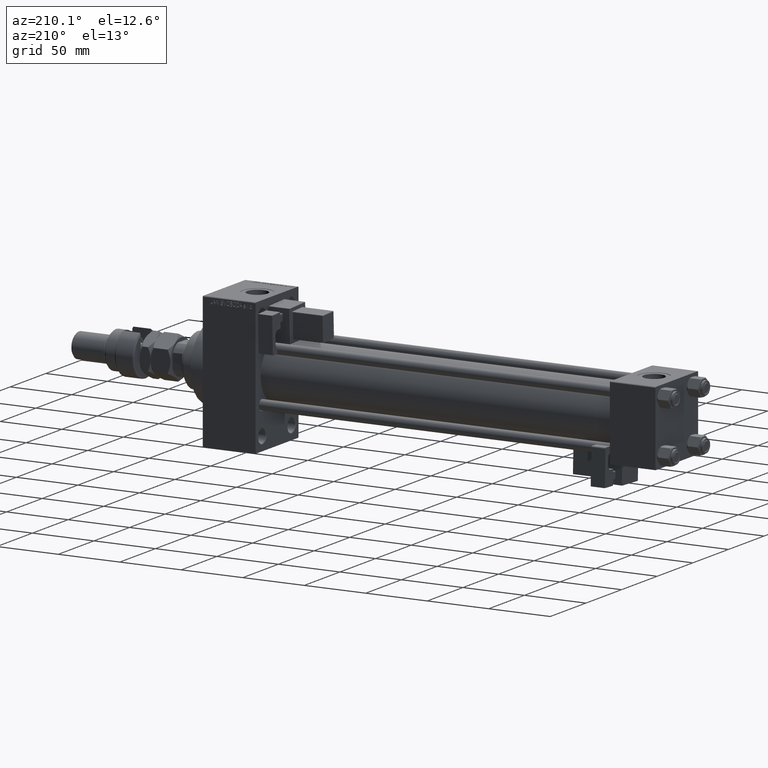
[diagram: clean part render]
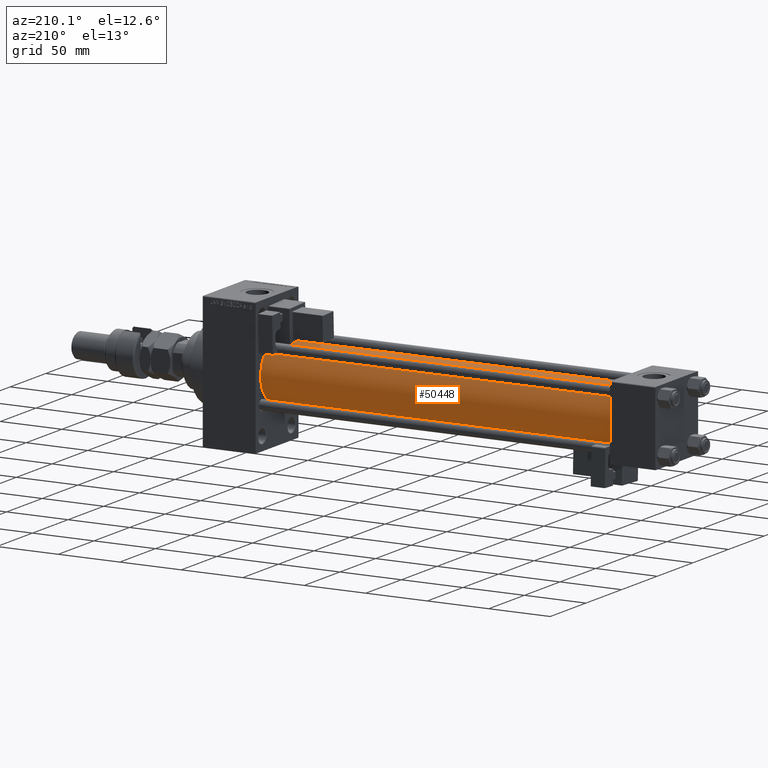
[diagram: same view with one face highlighted and labeled with its STEP entity id]
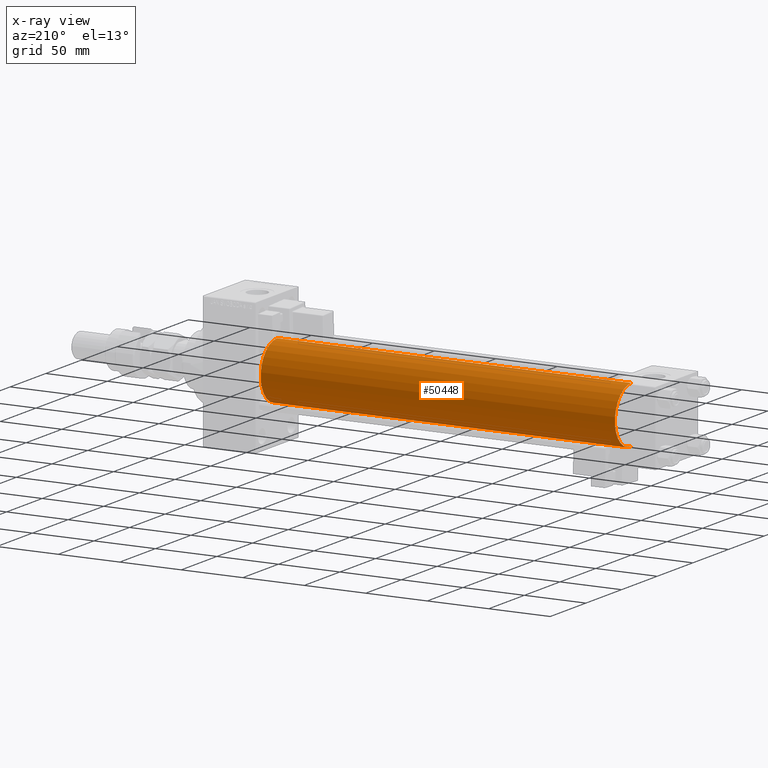
[diagram: x-ray of the same camera — body ghosted, the highlighted face saturated]
A machine part, auxiliary view. The second image highlights one B-rep face of the part: STEP entity #50448.
The next image is the same camera in x-ray: the body ghosted, the highlighted face saturated — about 0% of this face is hidden behind the body in this view.
In plain terms, the highlighted cylindrical surface (edge-blend (fillet) strip) has radius 23 mm, axis along (-1, -0, -0).
Its self-contained STEP definition (entity closure, byte-faithful):
#659 = CARTESIAN_POINT ( 'NONE',  ( 36.99999999999997868, 2.146024240737016609E-16, -23.00000000000000000 ) ) ;
#3034 = ORIENTED_EDGE ( 'NONE', *, *, #37082, .F. ) ;
#4034 = CIRCLE ( 'NONE', #10814, 23.00000000000000000 ) ;
#4210 = CIRCLE ( 'NONE', #43269, 23.00000000000000000 ) ;
#4756 = FACE_OUTER_BOUND ( 'NONE', #23323, .T. ) ;
#5018 = VERTEX_POINT ( 'NONE', #14227 ) ;
#5290 = VECTOR ( 'NONE', #17270, 1000.000000000000000 ) ;
#5890 = DIRECTION ( 'NONE',  ( 0.000000000000000000, 0.000000000000000000, 1.000000000000000000 ) ) ;
#7802 = EDGE_CURVE ( 'NONE', #5018, #25279, #47234, .T. ) ;
#8727 = DIRECTION ( 'NONE',  ( 0.000000000000000000, 0.000000000000000000, 1.000000000000000000 ) ) ;
#10535 = DIRECTION ( 'NONE',  ( -1.000000000000000000, -0.000000000000000000, -0.000000000000000000 ) ) ;
#10814 = AXIS2_PLACEMENT_3D ( 'NONE', #28678, #15407, #31893 ) ;
#11143 = AXIS2_PLACEMENT_3D ( 'NONE', #28687, #44904, #8727 ) ;
#12178 = VECTOR ( 'NONE', #10535, 1000.000000000000000 ) ;
#13557 = ORIENTED_EDGE ( 'NONE', *, *, #22649, .F. ) ;
#14227 = CARTESIAN_POINT ( 'NONE',  ( 324.9999999999999432, 2.146024240737016609E-16, -23.00000000000000000 ) ) ;
#15407 = DIRECTION ( 'NONE',  ( 1.000000000000000000, 0.000000000000000000, 0.000000000000000000 ) ) ;
#16279 = CARTESIAN_POINT ( 'NONE',  ( 324.9999999999999432, -2.602085213965210642E-15, 23.00000000000000000 ) ) ;
#16549 = DIRECTION ( 'NONE',  ( 1.000000000000000000, -0.000000000000000000, 0.000000000000000000 ) ) ;
#16999 = CARTESIAN_POINT ( 'NONE',  ( 324.9999999999999432, -2.602085213965210642E-15, 23.00000000000000000 ) ) ;
#17270 = DIRECTION ( 'NONE',  ( -1.000000000000000000, -0.000000000000000000, -0.000000000000000000 ) ) ;
#17589 = CARTESIAN_POINT ( 'NONE',  ( 36.99999999999997868, -2.602085213965210642E-15, 0.000000000000000000 ) ) ;
#18984 = CARTESIAN_POINT ( 'NONE',  ( 36.99999999999997868, -2.602085213965210642E-15, 23.00000000000000000 ) ) ;
#20734 = LINE ( 'NONE', #16999, #5290 ) ;
#22649 = EDGE_CURVE ( 'NONE', #43975, #39712, #20734, .T. ) ;
#23323 = EDGE_LOOP ( 'NONE', ( #3034, #29461, #31418, #13557 ) ) ;
#25279 = VERTEX_POINT ( 'NONE', #659 ) ;
#28678 = CARTESIAN_POINT ( 'NONE',  ( 324.9999999999999432, -2.602085213965210642E-15, 0.000000000000000000 ) ) ;
#28687 = CARTESIAN_POINT ( 'NONE',  ( 324.9999999999999432, -2.602085213965210642E-15, 0.000000000000000000 ) ) ;
#29461 = ORIENTED_EDGE ( 'NONE', *, *, #7802, .T. ) ;
#31418 = ORIENTED_EDGE ( 'NONE', *, *, #41417, .T. ) ;
#31893 = DIRECTION ( 'NONE',  ( 0.000000000000000000, 0.000000000000000000, -1.000000000000000000 ) ) ;
#32410 = CYLINDRICAL_SURFACE ( 'NONE', #11143, 23.00000000000000000 ) ;
#37082 = EDGE_CURVE ( 'NONE', #5018, #43975, #4034, .T. ) ;
#39712 = VERTEX_POINT ( 'NONE', #18984 ) ;
#41417 = EDGE_CURVE ( 'NONE', #25279, #39712, #4210, .T. ) ;
#43269 = AXIS2_PLACEMENT_3D ( 'NONE', #17589, #16549, #5890 ) ;
#43975 = VERTEX_POINT ( 'NONE', #16279 ) ;
#44904 = DIRECTION ( 'NONE',  ( -1.000000000000000000, -0.000000000000000000, -0.000000000000000000 ) ) ;
#47234 = LINE ( 'NONE', #50955, #12178 ) ;
#50448 = ADVANCED_FACE ( 'NONE', ( #4756 ), #32410, .T. ) ;
#50955 = CARTESIAN_POINT ( 'NONE',  ( 324.9999999999999432, 2.146024240737016609E-16, -23.00000000000000000 ) ) ;